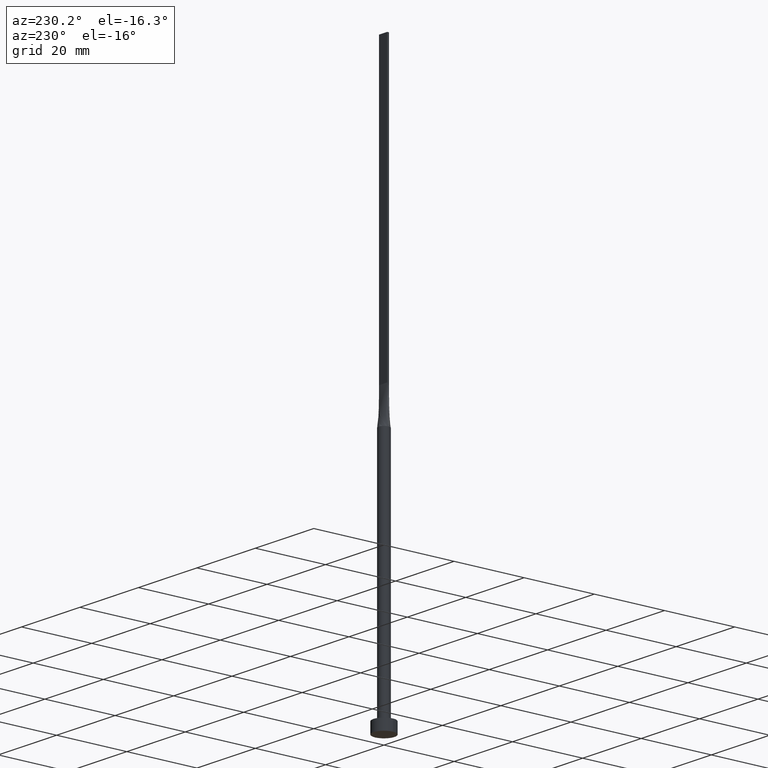
[diagram: clean part render]
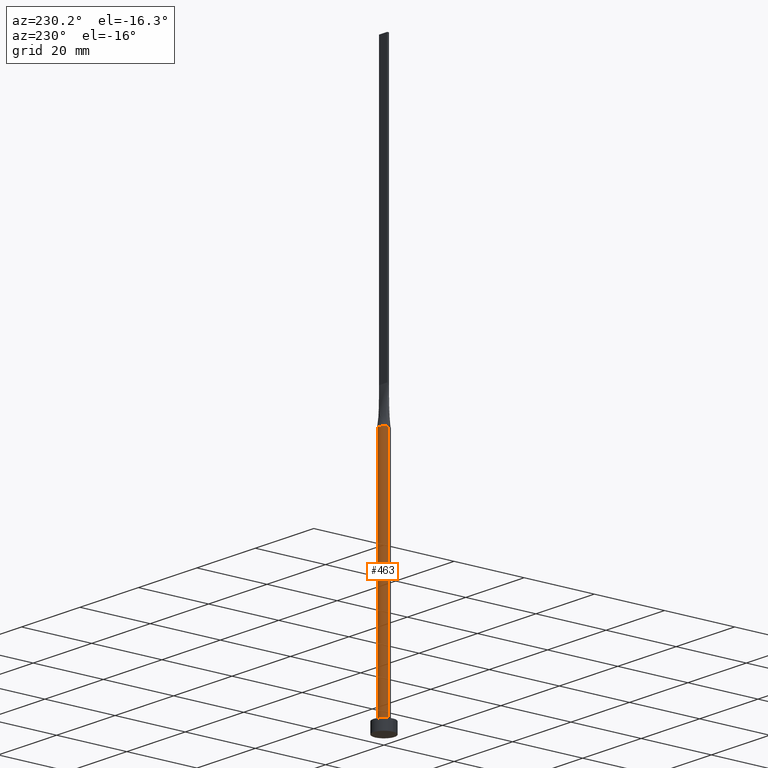
[diagram: same view with one face highlighted and labeled with its STEP entity id]
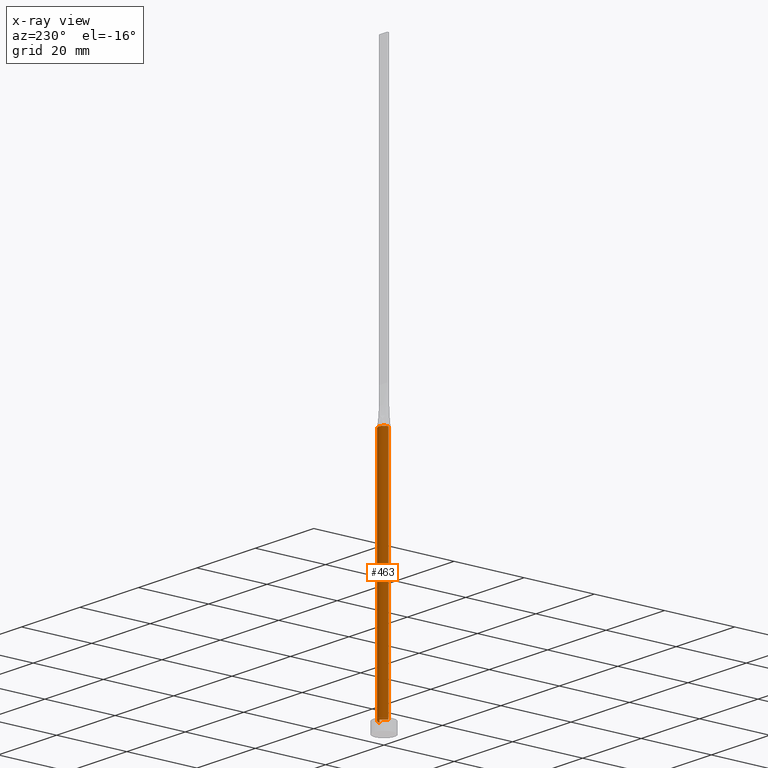
[diagram: x-ray of the same camera — body ghosted, the highlighted face saturated]
A machine part, auxiliary view. The second image highlights one B-rep face of the part: STEP entity #463.
The next image is the same camera in x-ray: the body ghosted, the highlighted face saturated — about 0% of this face is hidden behind the body in this view.
In plain terms, the highlighted cylindrical surface (edge-blend (fillet) strip) has radius 1.5 mm, axis along (-0, -0, -1).
Its self-contained STEP definition (entity closure, byte-faithful):
#4 = AXIS2_PLACEMENT_3D ( 'NONE', #34, #219, #395 ) ;
#12 = CARTESIAN_POINT ( 'NONE',  ( -1.499909062348296462, -1.026848616785427865E-15, 70.00000000000000000 ) ) ;
#23 = CARTESIAN_POINT ( 'NONE',  ( 1.416287091352355976, 0.5163978007200227260, 70.00000000000001421 ) ) ;
#33 = ORIENTED_EDGE ( 'NONE', *, *, #120, .F. ) ;
#34 = CARTESIAN_POINT ( 'NONE',  ( 0.000000000000000000, 0.000000000000000000, 70.00000000000000000 ) ) ;
#36 = ORIENTED_EDGE ( 'NONE', *, *, #158, .F. ) ;
#37 = CARTESIAN_POINT ( 'NONE',  ( -1.476774769252511055, 0.2637095436881764510, 70.00000000000000000 ) ) ;
#48 = CARTESIAN_POINT ( 'NONE',  ( 0.000000000000000000, 0.000000000000000000, 70.00000000000000000 ) ) ;
#62 = DIRECTION ( 'NONE',  ( -0.000000000000000000, -0.000000000000000000, -1.000000000000000000 ) ) ;
#73 = CARTESIAN_POINT ( 'NONE',  ( -0.4178861784692550208, 1.454504042781961326, 70.00000000000001421 ) ) ;
#75 = CARTESIAN_POINT ( 'NONE',  ( -1.416287091352355976, 0.5163978007200225040, 70.00000000000001421 ) ) ;
#76 = AXIS2_PLACEMENT_3D ( 'NONE', #48, #234, #372 ) ;
#78 = ORIENTED_EDGE ( 'NONE', *, *, #487, .T. ) ;
#87 = VECTOR ( 'NONE', #62, 1000.000000000000000 ) ;
#91 = ORIENTED_EDGE ( 'NONE', *, *, #169, .F. ) ;
#98 = CARTESIAN_POINT ( 'NONE',  ( 1.500000000000000222, 1.836970198721030181E-16, 70.00000000000000000 ) ) ;
#99 = EDGE_CURVE ( 'NONE', #383, #557, #281, .T. ) ;
#109 = CARTESIAN_POINT ( 'NONE',  ( -1.500000000000000222, 0.000000000000000000, 70.00000000000000000 ) ) ;
#115 = VERTEX_POINT ( 'NONE', #12 ) ;
#120 = EDGE_CURVE ( 'NONE', #115, #557, #334, .T. ) ;
#121 = CARTESIAN_POINT ( 'NONE',  ( -0.9436169880431073409, 1.179536671679307647, 70.00000000000001421 ) ) ;
#131 = EDGE_LOOP ( 'NONE', ( #436, #78, #218, #33, #91, #36 ) ) ;
#132 = CARTESIAN_POINT ( 'NONE',  ( -1.455009719257779111, 0.3848231641531745795, 70.00000000000000000 ) ) ;
#138 = CARTESIAN_POINT ( 'NONE',  ( 1.476765312825354837, 0.2637079867918904474, 70.00000000000000000 ) ) ;
#152 = CARTESIAN_POINT ( 'NONE',  ( 0.000000000000000000, 0.000000000000000000, 3.000000000000000000 ) ) ;
#158 = EDGE_CURVE ( 'NONE', #365, #505, #254, .T. ) ;
#159 = CARTESIAN_POINT ( 'NONE',  ( 0.7852726932053988307, 1.293660568283136358, 70.00000000000001421 ) ) ;
#166 = DIRECTION ( 'NONE',  ( 1.000000000000000000, 0.000000000000000000, 0.000000000000000000 ) ) ;
#169 = EDGE_CURVE ( 'NONE', #505, #115, #409, .T. ) ;
#177 = CIRCLE ( 'NONE', #4, 1.500000000000000222 ) ;
#179 = VERTEX_POINT ( 'NONE', #258 ) ;
#187 = AXIS2_PLACEMENT_3D ( 'NONE', #152, #379, #560 ) ;
#209 = CARTESIAN_POINT ( 'NONE',  ( 1.476765312825354837, 0.2637079867918904474, 70.00000000000000000 ) ) ;
#218 = ORIENTED_EDGE ( 'NONE', *, *, #99, .T. ) ;
#219 = DIRECTION ( 'NONE',  ( 0.000000000000000000, 0.000000000000000000, 1.000000000000000000 ) ) ;
#222 = EDGE_CURVE ( 'NONE', #179, #365, #177, .T. ) ;
#234 = DIRECTION ( 'NONE',  ( -0.000000000000000000, -0.000000000000000000, -1.000000000000000000 ) ) ;
#236 = CARTESIAN_POINT ( 'NONE',  ( -1.476774769252511055, 0.2637095436881764510, 70.00000000000000000 ) ) ;
#253 = CARTESIAN_POINT ( 'NONE',  ( -1.500000000000000222, 0.000000000000000000, 3.000000000000000000 ) ) ;
#254 = B_SPLINE_CURVE_WITH_KNOTS ( 'NONE', 3,
 ( #209, #418, #23, #382, #386, #556, #159, #337, #547, #326, #73, #354, #121, #478, #263, #75, #132, #37 ),
 .UNSPECIFIED., .F., .F.,
 ( 4, 2, 2, 2, 2, 2, 2, 2, 4 ),
 ( 0.000000000000000000, 0.1249999999999999167, 0.2499999999999998335, 0.3749999999999998335, 0.4999999999999998890, 0.6249999999999998890, 0.7499999999999998890, 0.8750000000000000000, 1.000000000000000000 ),
 .UNSPECIFIED. ) ;
#258 = CARTESIAN_POINT ( 'NONE',  ( 1.499909062348296462, 3.515891419768138559E-16, 70.00000000000000000 ) ) ;
#263 = CARTESIAN_POINT ( 'NONE',  ( -1.285860877433235183, 0.7868275653575075301, 70.00000000000001421 ) ) ;
#281 = CIRCLE ( 'NONE', #187, 1.500000000000000222 ) ;
#319 = CARTESIAN_POINT ( 'NONE',  ( 1.500000000000000222, 1.836970198721030181E-16, 3.000000000000000000 ) ) ;
#325 = CYLINDRICAL_SURFACE ( 'NONE', #76, 1.500000000000000222 ) ;
#326 = CARTESIAN_POINT ( 'NONE',  ( -0.2093118330951410921, 1.500000000000000222, 70.00000000000001421 ) ) ;
#334 = LINE ( 'NONE', #109, #87 ) ;
#337 = CARTESIAN_POINT ( 'NONE',  ( 0.4178861784692547432, 1.454504042781961770, 70.00000000000004263 ) ) ;
#354 = CARTESIAN_POINT ( 'NONE',  ( -0.7852726932053990527, 1.293660568283136136, 70.00000000000001421 ) ) ;
#365 = VERTEX_POINT ( 'NONE', #138 ) ;
#372 = DIRECTION ( 'NONE',  ( -1.000000000000000000, 0.000000000000000000, 0.000000000000000000 ) ) ;
#378 = LINE ( 'NONE', #98, #433 ) ;
#379 = DIRECTION ( 'NONE',  ( 0.000000000000000000, 0.000000000000000000, 1.000000000000000000 ) ) ;
#382 = CARTESIAN_POINT ( 'NONE',  ( 1.285860877433235405, 0.7868275653575075301, 70.00000000000000000 ) ) ;
#383 = VERTEX_POINT ( 'NONE', #319 ) ;
#386 = CARTESIAN_POINT ( 'NONE',  ( 1.193588737715979509, 0.9257784320005622014, 70.00000000000000000 ) ) ;
#395 = DIRECTION ( 'NONE',  ( 1.000000000000000000, 0.000000000000000000, 0.000000000000000000 ) ) ;
#409 = CIRCLE ( 'NONE', #500, 1.500000000000000222 ) ;
#418 = CARTESIAN_POINT ( 'NONE',  ( 1.455009719257779111, 0.3848231641531748570, 70.00000000000001421 ) ) ;
#433 = VECTOR ( 'NONE', #459, 1000.000000000000000 ) ;
#436 = ORIENTED_EDGE ( 'NONE', *, *, #222, .F. ) ;
#439 = CARTESIAN_POINT ( 'NONE',  ( 0.000000000000000000, 0.000000000000000000, 70.00000000000000000 ) ) ;
#459 = DIRECTION ( 'NONE',  ( -0.000000000000000000, -0.000000000000000000, -1.000000000000000000 ) ) ;
#463 = ADVANCED_FACE ( 'NONE', ( #496 ), #325, .T. ) ;
#478 = CARTESIAN_POINT ( 'NONE',  ( -1.193588737715979731, 0.9257784320005616463, 70.00000000000000000 ) ) ;
#487 = EDGE_CURVE ( 'NONE', #179, #383, #378, .T. ) ;
#496 = FACE_OUTER_BOUND ( 'NONE', #131, .T. ) ;
#500 = AXIS2_PLACEMENT_3D ( 'NONE', #439, #523, #166 ) ;
#505 = VERTEX_POINT ( 'NONE', #236 ) ;
#523 = DIRECTION ( 'NONE',  ( 0.000000000000000000, 0.000000000000000000, 1.000000000000000000 ) ) ;
#547 = CARTESIAN_POINT ( 'NONE',  ( 0.2093118330951408979, 1.500000000000000666, 70.00000000000000000 ) ) ;
#556 = CARTESIAN_POINT ( 'NONE',  ( 0.9436169880431070078, 1.179536671679307869, 70.00000000000001421 ) ) ;
#557 = VERTEX_POINT ( 'NONE', #253 ) ;
#560 = DIRECTION ( 'NONE',  ( 1.000000000000000000, 0.000000000000000000, 0.000000000000000000 ) ) ;